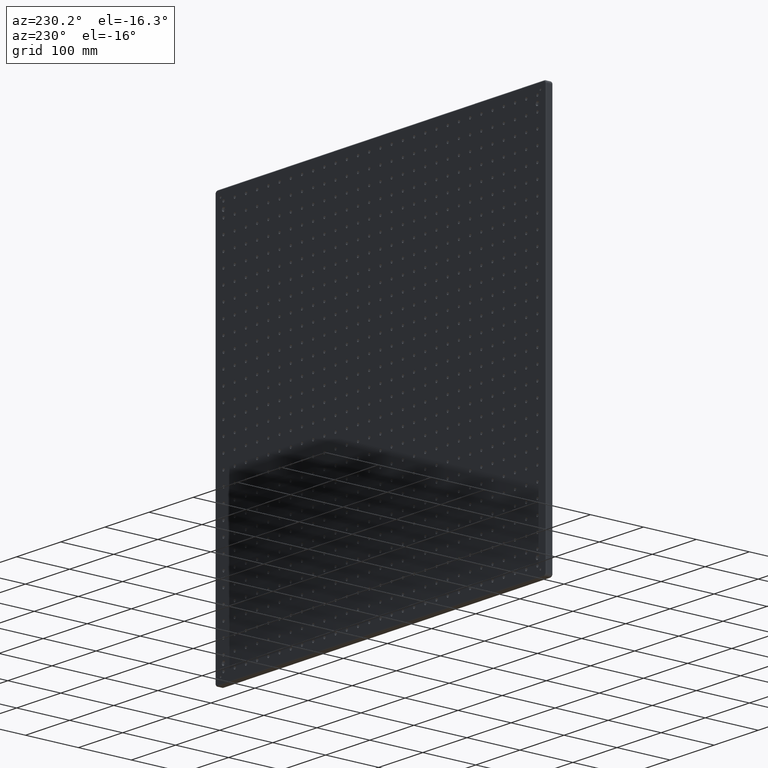
[diagram: clean part render]
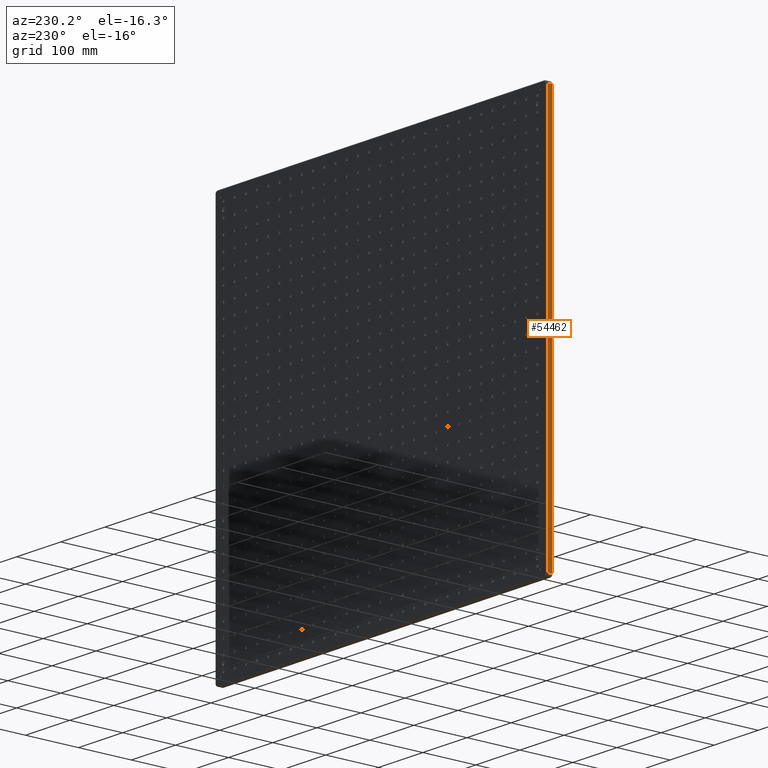
[diagram: same view with one face highlighted and labeled with its STEP entity id]
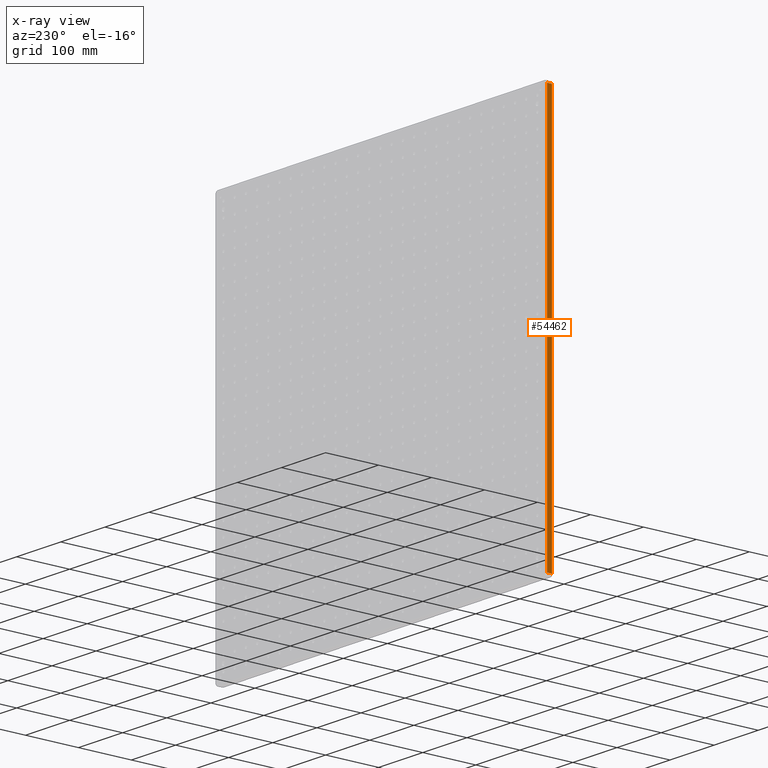
[diagram: x-ray of the same camera — body ghosted, the highlighted face saturated]
A machine part, auxiliary view. The second image highlights one B-rep face of the part: STEP entity #54462.
The next image is the same camera in x-ray: the body ghosted, the highlighted face saturated — about 0% of this face is hidden behind the body in this view.
In plain terms, the highlighted planar face has unit normal (1, 0, 0).
Its self-contained STEP definition (entity closure, byte-faithful):
#116 = CARTESIAN_POINT ( 'NONE',  ( -374.9999999999998863, 2.000000000000003553, 369.9999999999999432 ) ) ;
#3565 = LINE ( 'NONE', #52953, #54839 ) ;
#5305 = DIRECTION ( 'NONE',  ( -0.000000000000000000, -1.000000000000000000, -0.000000000000000000 ) ) ;
#6223 = LINE ( 'NONE', #45611, #22281 ) ;
#8848 = VECTOR ( 'NONE', #5305, 1000.000000000000000 ) ;
#12908 = CARTESIAN_POINT ( 'NONE',  ( -374.9999999999997726, 11.00000000000000000, -369.9999999999999432 ) ) ;
#12939 = VERTEX_POINT ( 'NONE', #49485 ) ;
#12961 = CARTESIAN_POINT ( 'NONE',  ( -374.9999999999997726, 13.00000000000000000, -369.9999999999999432 ) ) ;
#13278 = DIRECTION ( 'NONE',  ( 0.000000000000000000, -0.000000000000000000, -1.000000000000000000 ) ) ;
#14340 = VERTEX_POINT ( 'NONE', #34092 ) ;
#16217 = EDGE_CURVE ( 'NONE', #12939, #26128, #55708, .T. ) ;
#16330 = ORIENTED_EDGE ( 'NONE', *, *, #16217, .F. ) ;
#22281 = VECTOR ( 'NONE', #13278, 1000.000000000000000 ) ;
#26128 = VERTEX_POINT ( 'NONE', #116 ) ;
#26290 = EDGE_CURVE ( 'NONE', #12939, #44003, #6223, .T. ) ;
#31437 = ORIENTED_EDGE ( 'NONE', *, *, #38146, .T. ) ;
#33914 = DIRECTION ( 'NONE',  ( 0.000000000000000000, 0.000000000000000000, -1.000000000000000000 ) ) ;
#34092 = CARTESIAN_POINT ( 'NONE',  ( -374.9999999999997726, 2.000000000000001776, -369.9999999999999432 ) ) ;
#36356 = CARTESIAN_POINT ( 'NONE',  ( -374.9999999999998863, 13.00000000000000000, 369.9999999999999432 ) ) ;
#38146 = EDGE_CURVE ( 'NONE', #44003, #14340, #41106, .T. ) ;
#40146 = CARTESIAN_POINT ( 'NONE',  ( -374.9999999999997726, 13.00000000000000000, -369.9999999999999432 ) ) ;
#41106 = LINE ( 'NONE', #40146, #8848 ) ;
#41467 = ORIENTED_EDGE ( 'NONE', *, *, #26290, .T. ) ;
#42457 = EDGE_LOOP ( 'NONE', ( #31437, #51500, #16330, #41467 ) ) ;
#43611 = PLANE ( 'NONE',  #44590 ) ;
#44003 = VERTEX_POINT ( 'NONE', #12908 ) ;
#44590 = AXIS2_PLACEMENT_3D ( 'NONE', #12961, #53288, #33914 ) ;
#44969 = VECTOR ( 'NONE', #45375, 1000.000000000000000 ) ;
#45375 = DIRECTION ( 'NONE',  ( -0.000000000000000000, -1.000000000000000000, -0.000000000000000000 ) ) ;
#45611 = CARTESIAN_POINT ( 'NONE',  ( -374.9999999999997726, 11.00000000000000000, -369.9999999999999432 ) ) ;
#47471 = FACE_OUTER_BOUND ( 'NONE', #42457, .T. ) ;
#49292 = EDGE_CURVE ( 'NONE', #14340, #26128, #3565, .T. ) ;
#49485 = CARTESIAN_POINT ( 'NONE',  ( -374.9999999999998863, 11.00000000000000000, 369.9999999999999432 ) ) ;
#51500 = ORIENTED_EDGE ( 'NONE', *, *, #49292, .T. ) ;
#52953 = CARTESIAN_POINT ( 'NONE',  ( -374.9999999999997726, 2.000000000000000000, -369.9999999999999432 ) ) ;
#53288 = DIRECTION ( 'NONE',  ( 1.000000000000000000, 0.000000000000000000, 0.000000000000000000 ) ) ;
#54462 = ADVANCED_FACE ( 'NONE', ( #47471 ), #43611, .F. ) ;
#54839 = VECTOR ( 'NONE', #57146, 1000.000000000000000 ) ;
#55708 = LINE ( 'NONE', #36356, #44969 ) ;
#57146 = DIRECTION ( 'NONE',  ( 0.000000000000000000, 0.000000000000000000, 1.000000000000000000 ) ) ;